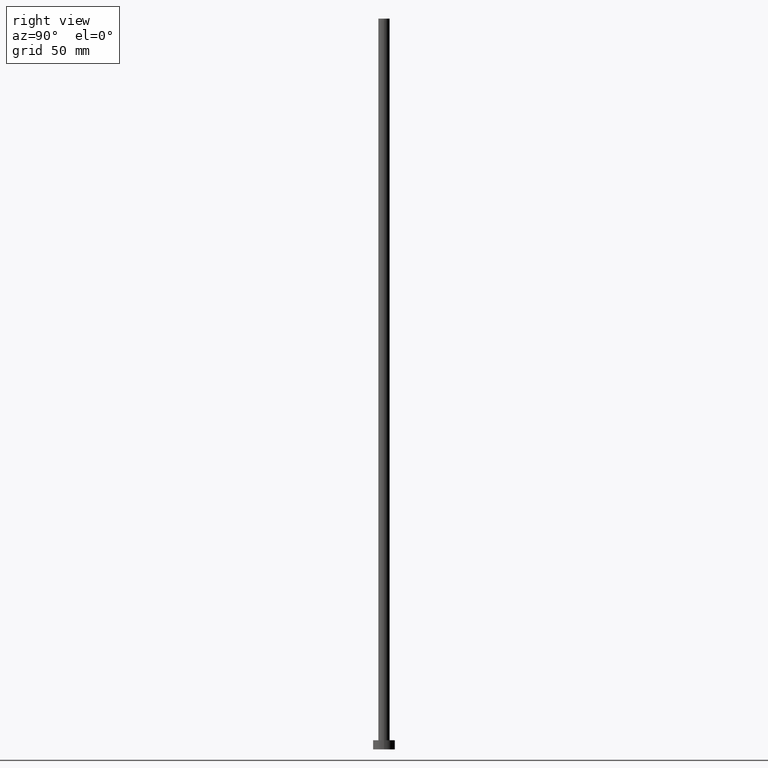
[diagram: clean part render]
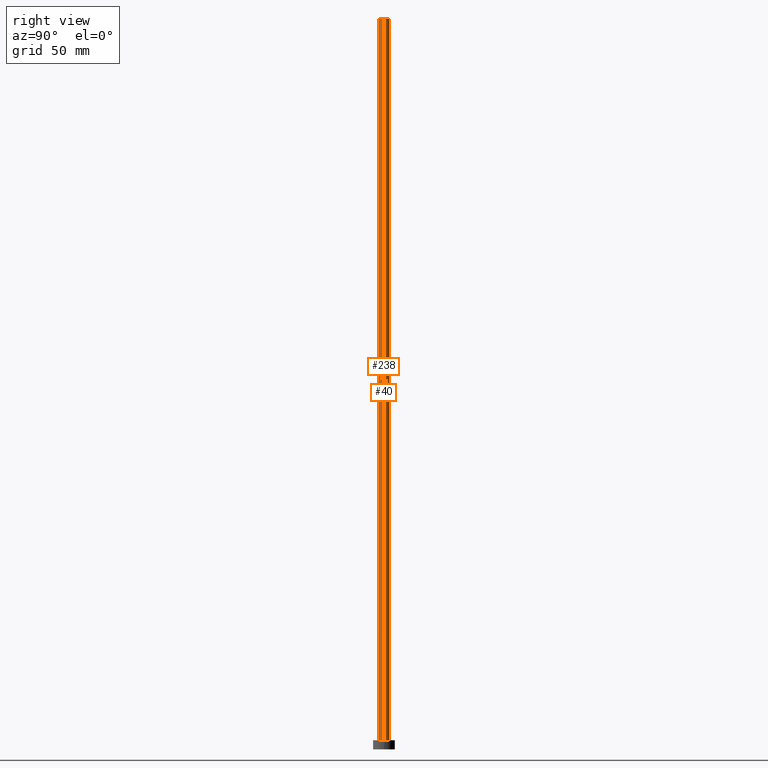
[diagram: same view with one multi-face feature highlighted, each face labeled with its STEP entity id]
A machine part, right view. The highlighted faces form ONE feature: a constant-radius fillet chain: 2 tangent blend faces with common blend radius 3.1 mm. The faces share edges in the B-rep.
Their STEP definitions:
[1] entity #238 (Cylinder):
#4 = LINE ( 'NONE', #10, #46 ) ;
#5 = VERTEX_POINT ( 'NONE', #47 ) ;
#10 = CARTESIAN_POINT ( 'NONE',  ( -3.100000000000000089, 0.000000000000000000, 400.0000000000000000 ) ) ;
#14 = DIRECTION ( 'NONE',  ( -0.000000000000000000, -0.000000000000000000, -1.000000000000000000 ) ) ;
#17 = CARTESIAN_POINT ( 'NONE',  ( 0.000000000000000000, 0.000000000000000000, 5.000000000000000000 ) ) ;
#28 = ORIENTED_EDGE ( 'NONE', *, *, #253, .T. ) ;
#34 = ORIENTED_EDGE ( 'NONE', *, *, #109, .T. ) ;
#36 = CIRCLE ( 'NONE', #95, 3.100000000000000089 ) ;
#39 = AXIS2_PLACEMENT_3D ( 'NONE', #108, #14, #194 ) ;
#46 = VECTOR ( 'NONE', #80, 1000.000000000000000 ) ;
#47 = CARTESIAN_POINT ( 'NONE',  ( -3.100000000000000089, 0.000000000000000000, 5.000000000000000000 ) ) ;
#52 = LINE ( 'NONE', #132, #99 ) ;
#53 = CARTESIAN_POINT ( 'NONE',  ( 3.100000000000000089, 3.796405077356793932E-16, 5.000000000000000000 ) ) ;
#55 = CARTESIAN_POINT ( 'NONE',  ( 0.000000000000000000, 0.000000000000000000, 400.0000000000000000 ) ) ;
#70 = DIRECTION ( 'NONE',  ( -0.000000000000000000, -0.000000000000000000, -1.000000000000000000 ) ) ;
#74 = AXIS2_PLACEMENT_3D ( 'NONE', #55, #92, #214 ) ;
#80 = DIRECTION ( 'NONE',  ( -0.000000000000000000, -0.000000000000000000, -1.000000000000000000 ) ) ;
#92 = DIRECTION ( 'NONE',  ( 0.000000000000000000, 0.000000000000000000, 1.000000000000000000 ) ) ;
#95 = AXIS2_PLACEMENT_3D ( 'NONE', #17, #175, #197 ) ;
#99 = VECTOR ( 'NONE', #70, 1000.000000000000000 ) ;
#101 = VERTEX_POINT ( 'NONE', #211 ) ;
#107 = CYLINDRICAL_SURFACE ( 'NONE', #39, 3.100000000000000089 ) ;
#108 = CARTESIAN_POINT ( 'NONE',  ( 0.000000000000000000, 0.000000000000000000, 400.0000000000000000 ) ) ;
#109 = EDGE_CURVE ( 'NONE', #101, #5, #4, .T. ) ;
#111 = FACE_OUTER_BOUND ( 'NONE', #118, .T. ) ;
#118 = EDGE_LOOP ( 'NONE', ( #143, #147, #34, #28 ) ) ;
#120 = CIRCLE ( 'NONE', #74, 3.100000000000000089 ) ;
#123 = VERTEX_POINT ( 'NONE', #174 ) ;
#132 = CARTESIAN_POINT ( 'NONE',  ( 3.100000000000000089, 3.796405077356793932E-16, 400.0000000000000000 ) ) ;
#138 = VERTEX_POINT ( 'NONE', #53 ) ;
#143 = ORIENTED_EDGE ( 'NONE', *, *, #158, .F. ) ;
#147 = ORIENTED_EDGE ( 'NONE', *, *, #200, .F. ) ;
#158 = EDGE_CURVE ( 'NONE', #123, #138, #52, .T. ) ;
#174 = CARTESIAN_POINT ( 'NONE',  ( 3.100000000000000089, 3.796405077356793932E-16, 400.0000000000000000 ) ) ;
#175 = DIRECTION ( 'NONE',  ( 0.000000000000000000, 0.000000000000000000, 1.000000000000000000 ) ) ;
#194 = DIRECTION ( 'NONE',  ( -1.000000000000000000, 0.000000000000000000, 0.000000000000000000 ) ) ;
#197 = DIRECTION ( 'NONE',  ( 1.000000000000000000, 0.000000000000000000, 0.000000000000000000 ) ) ;
#200 = EDGE_CURVE ( 'NONE', #101, #123, #120, .T. ) ;
#211 = CARTESIAN_POINT ( 'NONE',  ( -3.100000000000000089, 0.000000000000000000, 400.0000000000000000 ) ) ;
#214 = DIRECTION ( 'NONE',  ( 1.000000000000000000, 0.000000000000000000, 0.000000000000000000 ) ) ;
#238 = ADVANCED_FACE ( 'NONE', ( #111 ), #107, .T. ) ;
#253 = EDGE_CURVE ( 'NONE', #5, #138, #36, .T. ) ;
[2] entity #40 (Cylinder):
#4 = LINE ( 'NONE', #10, #46 ) ;
#5 = VERTEX_POINT ( 'NONE', #47 ) ;
#10 = CARTESIAN_POINT ( 'NONE',  ( -3.100000000000000089, 0.000000000000000000, 400.0000000000000000 ) ) ;
#22 = EDGE_CURVE ( 'NONE', #138, #5, #156, .T. ) ;
#27 = CIRCLE ( 'NONE', #196, 3.100000000000000089 ) ;
#30 = CARTESIAN_POINT ( 'NONE',  ( 0.000000000000000000, 0.000000000000000000, 400.0000000000000000 ) ) ;
#40 = ADVANCED_FACE ( 'NONE', ( #104 ), #51, .T. ) ;
#41 = AXIS2_PLACEMENT_3D ( 'NONE', #187, #61, #124 ) ;
#42 = DIRECTION ( 'NONE',  ( 1.000000000000000000, 0.000000000000000000, 0.000000000000000000 ) ) ;
#46 = VECTOR ( 'NONE', #80, 1000.000000000000000 ) ;
#47 = CARTESIAN_POINT ( 'NONE',  ( -3.100000000000000089, 0.000000000000000000, 5.000000000000000000 ) ) ;
#51 = CYLINDRICAL_SURFACE ( 'NONE', #220, 3.100000000000000089 ) ;
#52 = LINE ( 'NONE', #132, #99 ) ;
#53 = CARTESIAN_POINT ( 'NONE',  ( 3.100000000000000089, 3.796405077356793932E-16, 5.000000000000000000 ) ) ;
#61 = DIRECTION ( 'NONE',  ( 0.000000000000000000, 0.000000000000000000, 1.000000000000000000 ) ) ;
#63 = DIRECTION ( 'NONE',  ( -1.000000000000000000, 0.000000000000000000, 0.000000000000000000 ) ) ;
#70 = DIRECTION ( 'NONE',  ( -0.000000000000000000, -0.000000000000000000, -1.000000000000000000 ) ) ;
#80 = DIRECTION ( 'NONE',  ( -0.000000000000000000, -0.000000000000000000, -1.000000000000000000 ) ) ;
#86 = DIRECTION ( 'NONE',  ( 0.000000000000000000, 0.000000000000000000, 1.000000000000000000 ) ) ;
#99 = VECTOR ( 'NONE', #70, 1000.000000000000000 ) ;
#101 = VERTEX_POINT ( 'NONE', #211 ) ;
#104 = FACE_OUTER_BOUND ( 'NONE', #134, .T. ) ;
#109 = EDGE_CURVE ( 'NONE', #101, #5, #4, .T. ) ;
#112 = EDGE_CURVE ( 'NONE', #123, #101, #27, .T. ) ;
#116 = ORIENTED_EDGE ( 'NONE', *, *, #158, .T. ) ;
#123 = VERTEX_POINT ( 'NONE', #174 ) ;
#124 = DIRECTION ( 'NONE',  ( 1.000000000000000000, 0.000000000000000000, 0.000000000000000000 ) ) ;
#132 = CARTESIAN_POINT ( 'NONE',  ( 3.100000000000000089, 3.796405077356793932E-16, 400.0000000000000000 ) ) ;
#133 = ORIENTED_EDGE ( 'NONE', *, *, #109, .F. ) ;
#134 = EDGE_LOOP ( 'NONE', ( #206, #116, #154, #133 ) ) ;
#138 = VERTEX_POINT ( 'NONE', #53 ) ;
#154 = ORIENTED_EDGE ( 'NONE', *, *, #22, .T. ) ;
#156 = CIRCLE ( 'NONE', #41, 3.100000000000000089 ) ;
#158 = EDGE_CURVE ( 'NONE', #123, #138, #52, .T. ) ;
#174 = CARTESIAN_POINT ( 'NONE',  ( 3.100000000000000089, 3.796405077356793932E-16, 400.0000000000000000 ) ) ;
#187 = CARTESIAN_POINT ( 'NONE',  ( 0.000000000000000000, 0.000000000000000000, 5.000000000000000000 ) ) ;
#196 = AXIS2_PLACEMENT_3D ( 'NONE', #222, #86, #42 ) ;
#206 = ORIENTED_EDGE ( 'NONE', *, *, #112, .F. ) ;
#211 = CARTESIAN_POINT ( 'NONE',  ( -3.100000000000000089, 0.000000000000000000, 400.0000000000000000 ) ) ;
#220 = AXIS2_PLACEMENT_3D ( 'NONE', #30, #247, #63 ) ;
#222 = CARTESIAN_POINT ( 'NONE',  ( 0.000000000000000000, 0.000000000000000000, 400.0000000000000000 ) ) ;
#247 = DIRECTION ( 'NONE',  ( -0.000000000000000000, -0.000000000000000000, -1.000000000000000000 ) ) ;